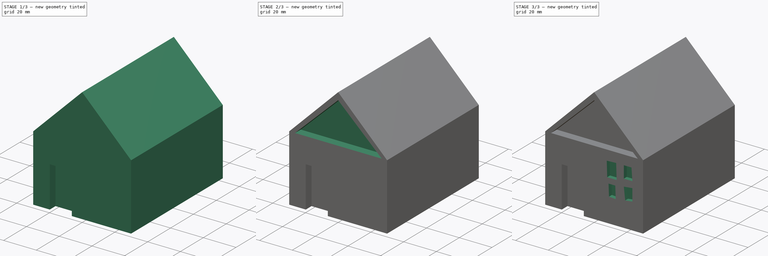
[diagram: build sequence overview — one tinted view per stage of 3, left to right]
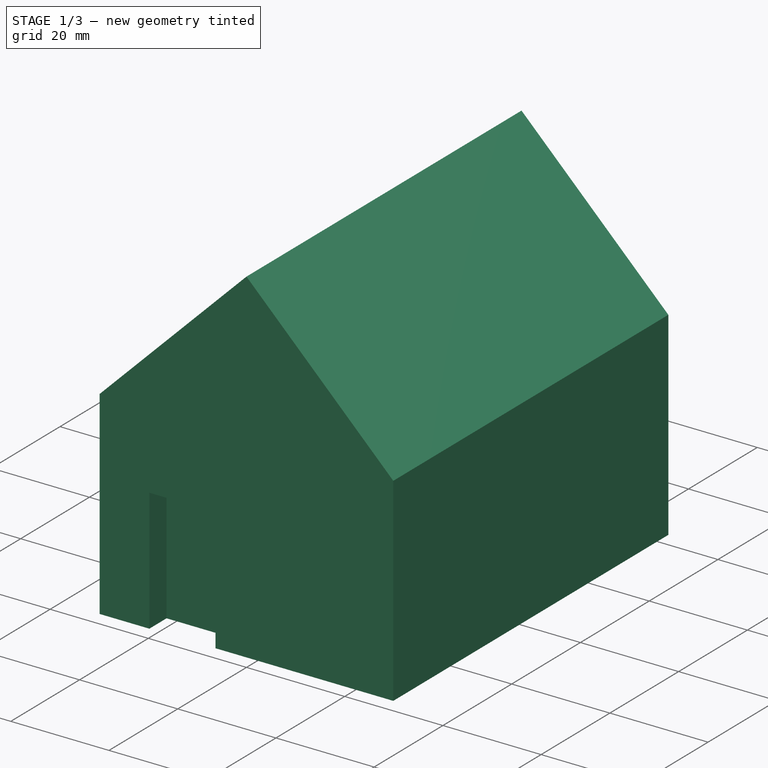
[diagram: stage 1 of 3 — iso view after this stage's code; geometry added in this stage tinted green]
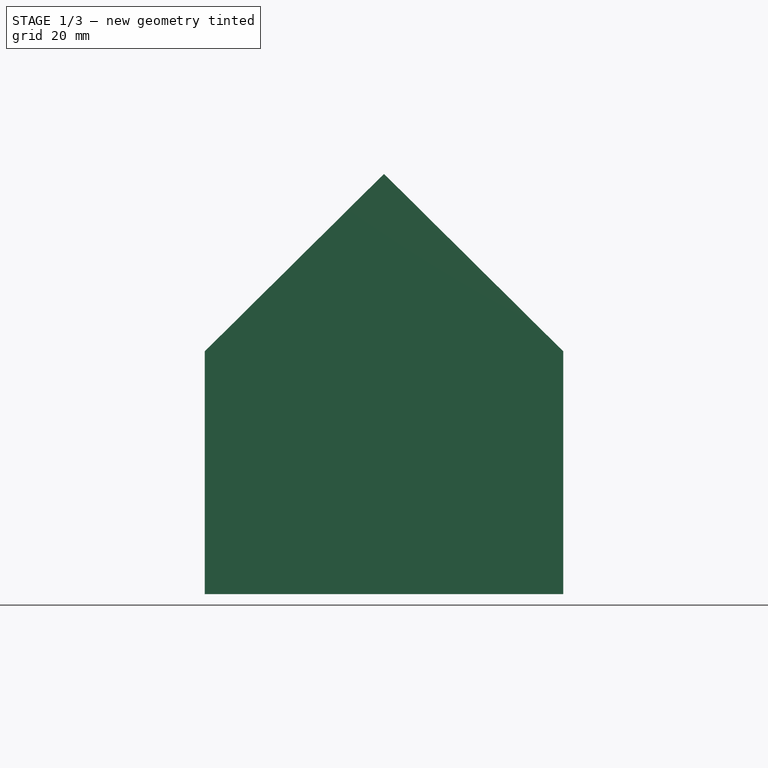
[diagram: stage 1 of 3 — front view after this stage's code; geometry added in this stage tinted green]
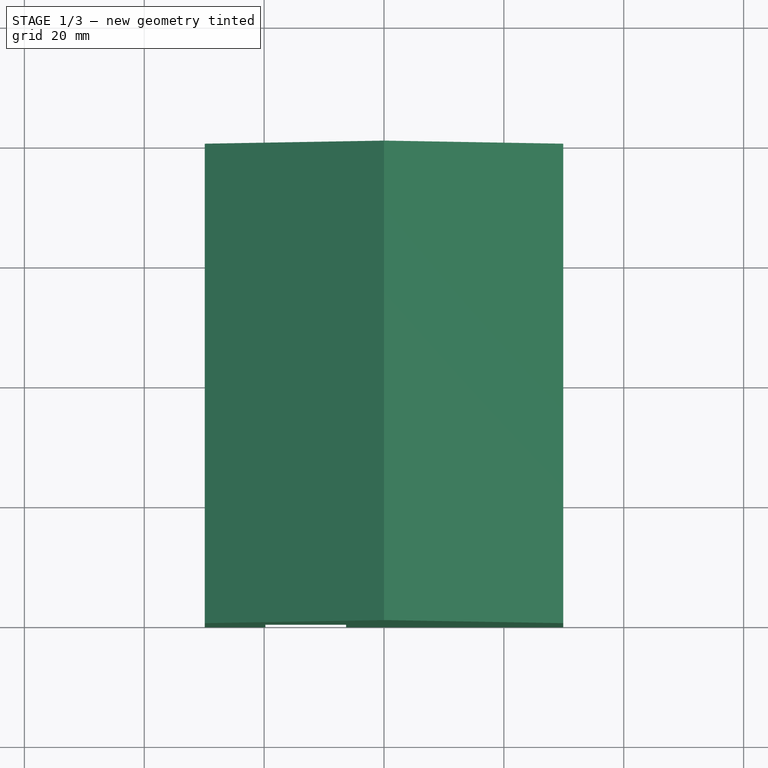
[diagram: stage 1 of 3 — top view after this stage's code; geometry added in this stage tinted green]
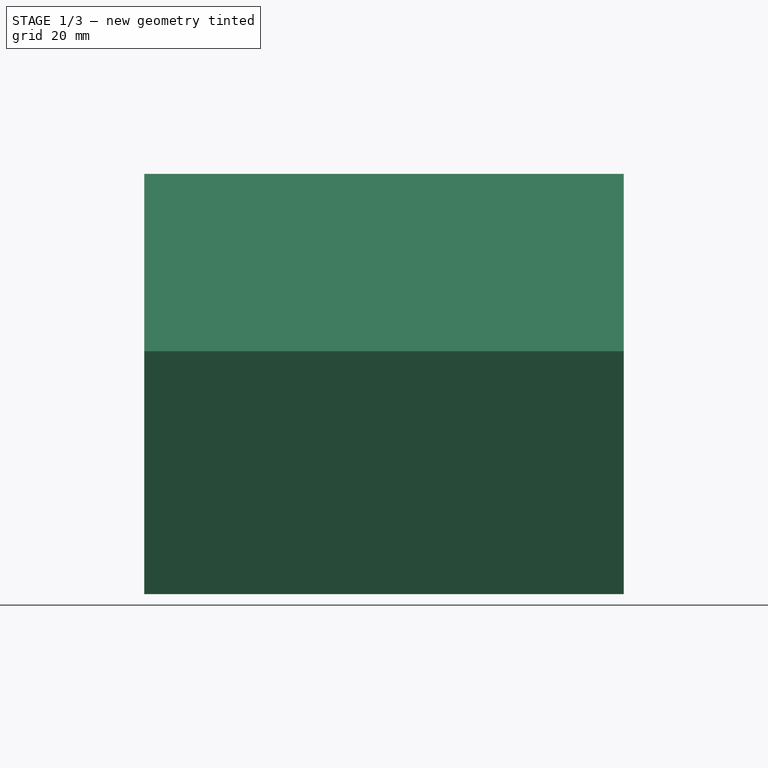
[diagram: stage 1 of 3 — right view after this stage's code; geometry added in this stage tinted green]
FCSTD DOCUMENT  (FreeCAD 0.21R33694 (Git))
Label: OJT1_T17R02_casa
License: All rights reserved
LicenseURL: http://en.wikipedia.org/wiki/All_rights_reserved
objects: Sketcher::SketchObject×5, PartDesign::Pocket×4, PartDesign::Pad×1, PartDesign::Body×1
note: 16 computed .brp shape members not serialized (recipe doc carries the construction recipe); baked Part::Feature solids carry a one-line shape summary decoded from their .brp

FEATURE [Sketcher::SketchObject] Sketch
  FullyConstrained = false
  MapMode = 5
  Placement = pos=(0,0,0) rot=(1,0,0;1.5708rad)
  Support = -> [XZ_Plane]
  sketch-geometry (5):
    g0: LineSegment StartX=-3.6e-15 StartY=29.596 StartZ=0 EndX=-29.899 EndY=0 EndZ=0
    g1: LineSegment StartX=-29.899 StartY=0 StartZ=0 EndX=-29.899 EndY=-40.505 EndZ=0
    g2: LineSegment StartX=-29.899 StartY=-40.505 StartZ=0 EndX=29.899 EndY=-40.505 EndZ=0
    g3: LineSegment StartX=29.899 StartY=-40.505 StartZ=0 EndX=29.899 EndY=0 EndZ=0
    g4: LineSegment StartX=29.899 StartY=0 StartZ=0 EndX=-3.6e-15 EndY=29.596 EndZ=0
  constraints (11):
    c: PointOnObject(g0,g-2)
    c: PointOnObject(g0,g-1)
    c: Coincident(g0,g1)
    c: Vertical(g1)
    c: Coincident(g1,g2)
    c: Horizontal(g2)
    c: Coincident(g2,g3)
    c: PointOnObject(g3,g-1)
    c: Vertical(g3)
    c: Coincident(g3,g4)
    c: Coincident(g4,g0)
FEATURE [PartDesign::Pad] Pad
  Direction = (0,-1,2e-16)
  Length = 80
  Length2 = 10
  Placement = pos=(0,0,0) rot=(1,0,0;1.5708rad)
  Profile = -> Sketch
  ReferenceAxis = -> Sketch [N_Axis]
  Type = 0
FEATURE [Sketcher::SketchObject] Sketch001
  FullyConstrained = false
  MapMode = 5
  Placement = pos=(0,-80,1.78e-14) rot=(1,0,0;1.5708rad)
  Support = -> [Pad]
  sketch-geometry (4):
    g0: LineSegment StartX=-19.7797 StartY=-41.0304 StartZ=0 EndX=-19.7797 EndY=-15.4817 EndZ=0
    g1: LineSegment StartX=-19.7797 StartY=-15.4817 StartZ=0 EndX=-6.3185 EndY=-15.4817 EndZ=0
    g2: LineSegment StartX=-6.3185 StartY=-15.4817 StartZ=0 EndX=-6.3185 EndY=-41.0304 EndZ=0
    g3: LineSegment StartX=-6.3185 StartY=-41.0304 StartZ=0 EndX=-19.7797 EndY=-41.0304 EndZ=0
  constraints (8):
    c: Vertical(g0)
    c: Coincident(g0,g1)
    c: Horizontal(g1)
    c: Coincident(g1,g2)
    c: Vertical(g2)
    c: Coincident(g2,g3)
    c: Coincident(g3,g0)
    c: Horizontal(g3)
FEATURE [PartDesign::Pocket] Pocket
  BaseFeature = -> Pad
  Direction = (0,1,-2e-16)
  Length = 5
  Length2 = 5
  Placement = pos=(0,0,0) rot=(1,0,0;1.5708rad)
  Profile = -> Sketch001
  ReferenceAxis = -> Sketch001 [N_Axis]
  Type = 0
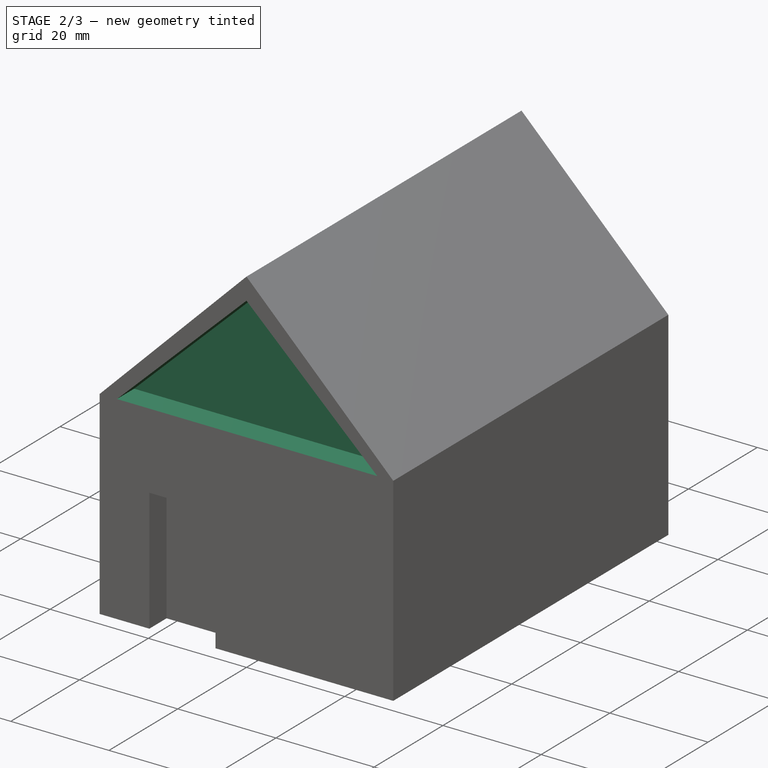
[diagram: stage 2 of 3 — iso view after this stage's code; geometry added in this stage tinted green]
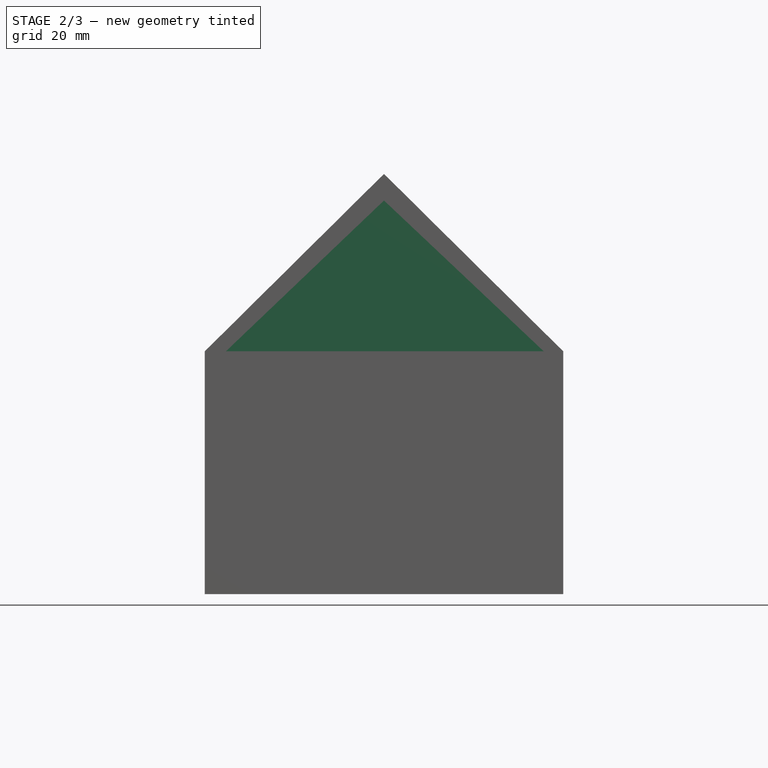
[diagram: stage 2 of 3 — front view after this stage's code; geometry added in this stage tinted green]
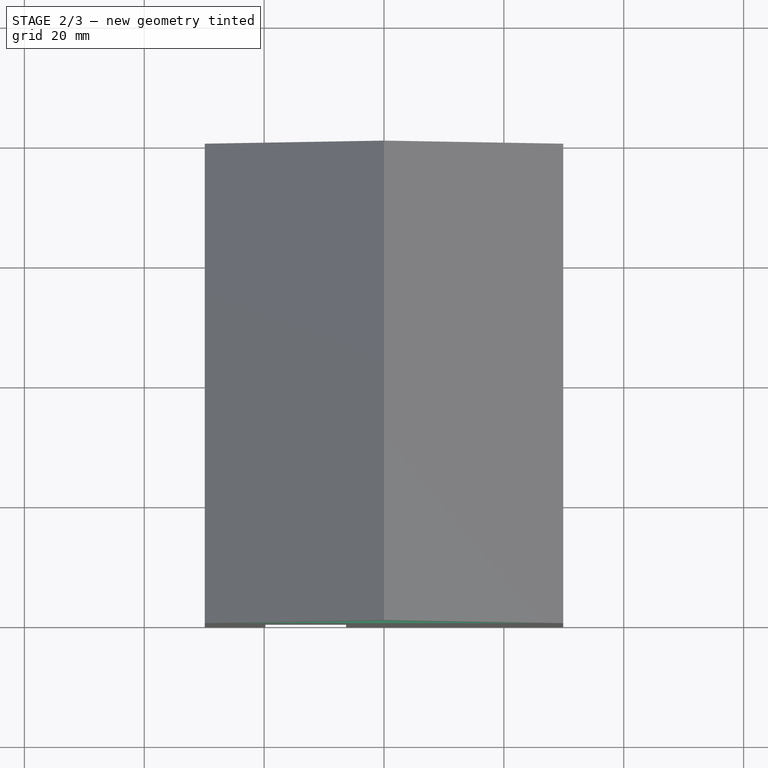
[diagram: stage 2 of 3 — top view after this stage's code; geometry added in this stage tinted green]
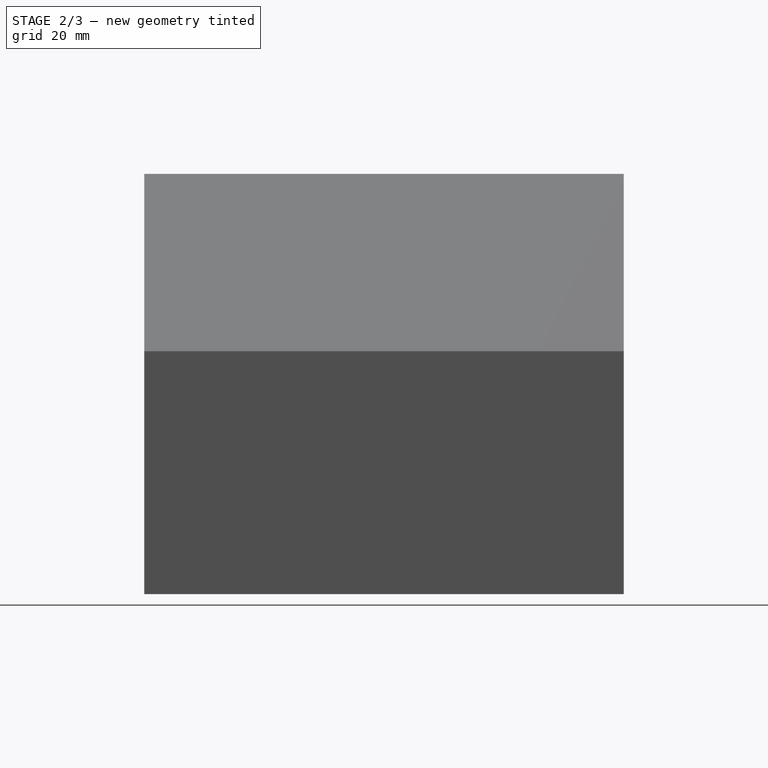
[diagram: stage 2 of 3 — right view after this stage's code; geometry added in this stage tinted green]
FEATURE [Sketcher::SketchObject] Sketch002
  FullyConstrained = false
  MapMode = 5
  Placement = pos=(0,-80,1.78e-14) rot=(1,0,0;1.5708rad)
  Support = -> [Pocket]
  sketch-geometry (3):
    g0: LineSegment StartX=0 StartY=25.1602 StartZ=0 EndX=-26.3752 EndY=0 EndZ=0
    g1: LineSegment StartX=-26.3752 StartY=0 StartZ=0 EndX=26.6424 EndY=0 EndZ=0
    g2: LineSegment StartX=26.6424 StartY=0 StartZ=0 EndX=0 EndY=25.1602 EndZ=0
  constraints (6):
    c: PointOnObject(g0,g-2)
    c: PointOnObject(g0,g-1)
    c: Coincident(g0,g1)
    c: Horizontal(g1)
    c: Coincident(g1,g2)
    c: Coincident(g2,g0)
FEATURE [PartDesign::Pocket] Pocket001
  BaseFeature = -> Pocket
  Direction = (0,1,-2e-16)
  Length = 5
  Length2 = 5
  Placement = pos=(0,0,0) rot=(1,0,0;1.5708rad)
  Profile = -> Sketch002
  ReferenceAxis = -> Sketch002 [N_Axis]
  Type = 0
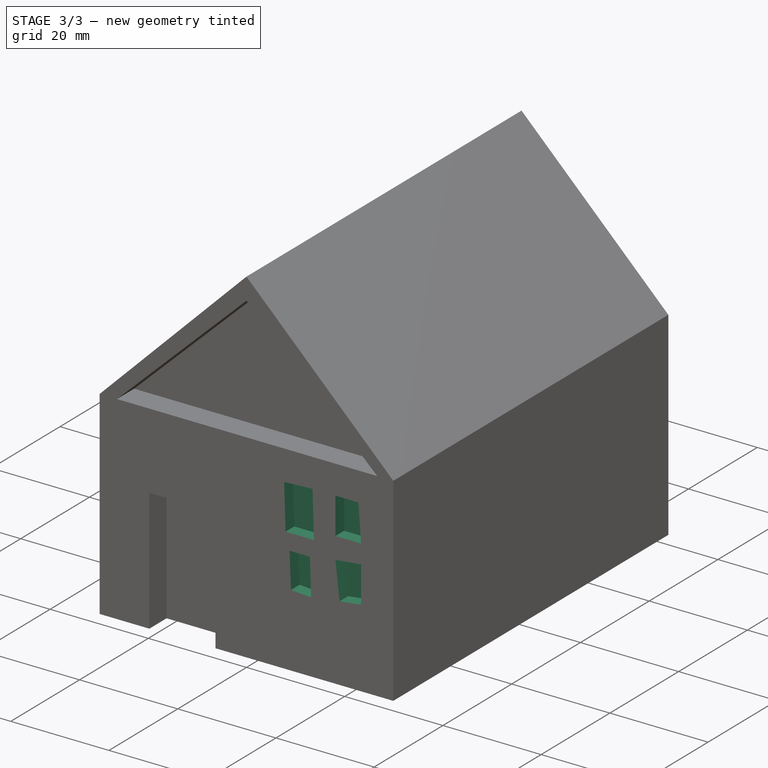
[diagram: stage 3 of 3 — iso view after this stage's code; geometry added in this stage tinted green]
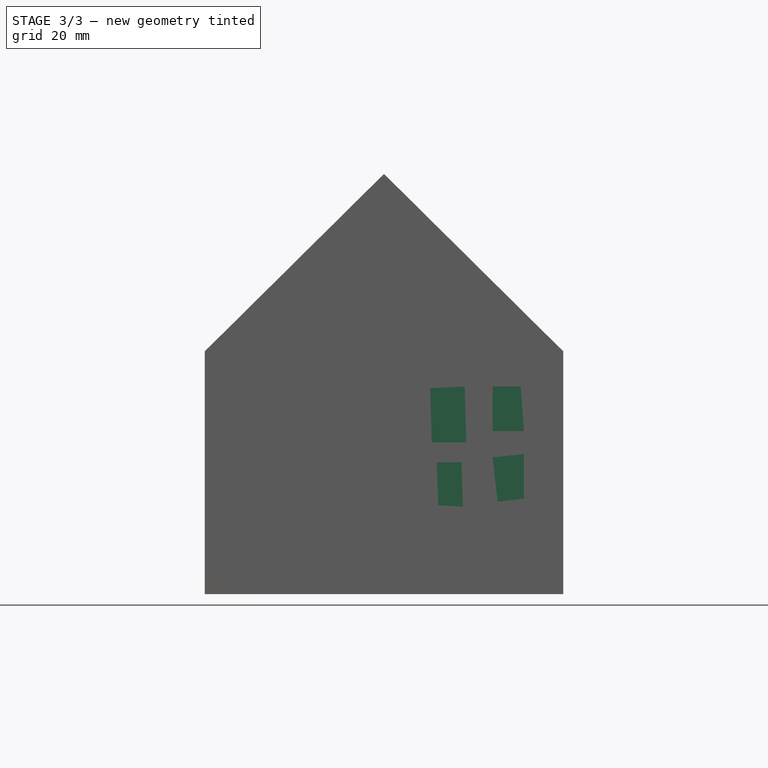
[diagram: stage 3 of 3 — front view after this stage's code; geometry added in this stage tinted green]
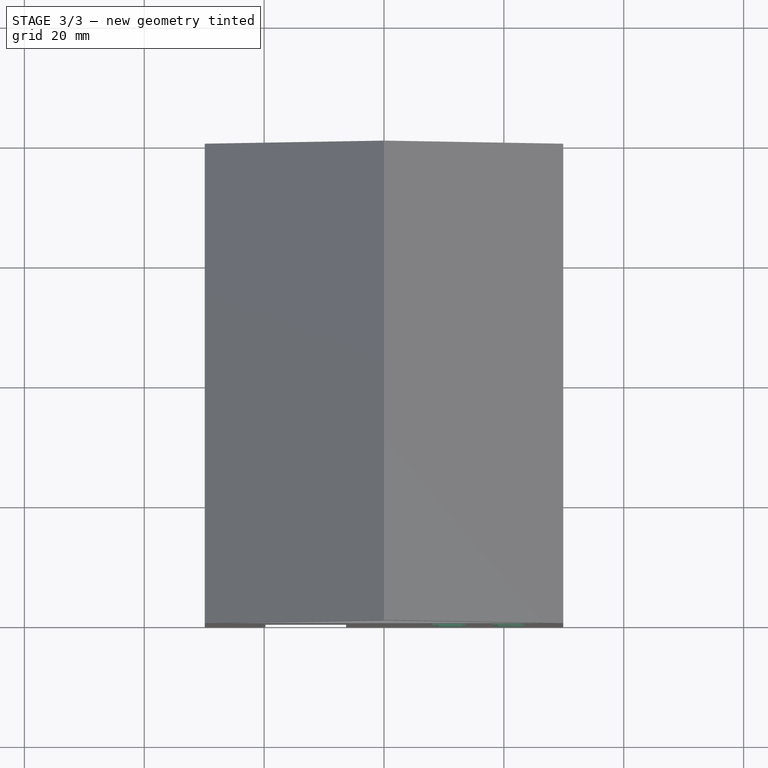
[diagram: stage 3 of 3 — top view after this stage's code; geometry added in this stage tinted green]
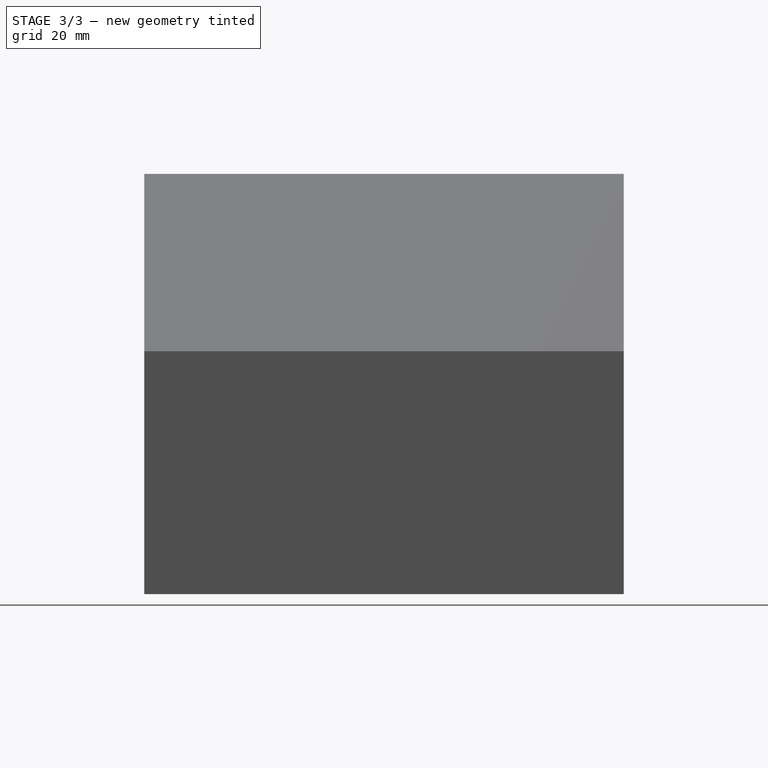
[diagram: stage 3 of 3 — right view after this stage's code; geometry added in this stage tinted green]
FEATURE [Sketcher::SketchObject] Sketch003
  FullyConstrained = false
  MapMode = 5
  Placement = pos=(0,-80,1.78e-14) rot=(1,0,0;1.5708rad)
  Support = -> [Pocket001]
  sketch-geometry (4):
    g0: LineSegment StartX=7.6879 StartY=-6.15595 StartZ=0 EndX=7.9626 EndY=-15.2211 EndZ=0
    g1: LineSegment StartX=7.9626 StartY=-15.2211 StartZ=0 EndX=13.7314 EndY=-15.2211 EndZ=0
    g2: LineSegment StartX=13.7314 StartY=-15.2211 StartZ=0 EndX=13.4567 EndY=-5.88124 EndZ=0
    g3: LineSegment StartX=13.4567 StartY=-5.88124 StartZ=0 EndX=7.6879 EndY=-6.15595 EndZ=0
  constraints (4):
    c: Coincident(g0,g1)
    c: Coincident(g1,g2)
    c: Coincident(g2,g3)
    c: Coincident(g3,g0)
FEATURE [Sketcher::SketchObject] Sketch004
  FullyConstrained = false
  MapMode = 5
  Placement = pos=(0,-80,1.78e-14) rot=(1,0,0;1.5708rad)
  Support = -> [Pocket001]
  sketch-geometry (12):
    g0: LineSegment StartX=23.346 StartY=-13.2982 StartZ=0 EndX=18.1266 EndY=-13.2982 EndZ=0
    g1: LineSegment StartX=18.1266 StartY=-13.2982 StartZ=0 EndX=18.1266 EndY=-5.88124 EndZ=0
    g2: LineSegment StartX=18.1266 StartY=-5.88124 StartZ=0 EndX=22.7966 EndY=-5.88124 EndZ=0
    g3: LineSegment StartX=22.7966 StartY=-5.88124 StartZ=0 EndX=23.346 EndY=-13.2982 EndZ=0
    g4: LineSegment StartX=8.7867 StartY=-18.5176 StartZ=0 EndX=12.9073 EndY=-18.5176 EndZ=0
    g5: LineSegment StartX=12.9073 StartY=-18.5176 StartZ=0 EndX=13.182 EndY=-25.9345 EndZ=0
    g6: LineSegment StartX=13.182 StartY=-25.9345 StartZ=0 EndX=9.06143 EndY=-25.6598 EndZ=0
    g7: LineSegment StartX=9.06143 StartY=-25.6598 StartZ=0 EndX=8.7867 EndY=-18.5176 EndZ=0
    g8: LineSegment StartX=18.1266 StartY=-17.6935 StartZ=0 EndX=18.9507 EndY=-25.1104 EndZ=0
    g9: LineSegment StartX=18.9507 StartY=-25.1104 StartZ=0 EndX=23.3459 EndY=-24.561 EndZ=0
    g10: LineSegment StartX=23.3459 StartY=-24.561 StartZ=0 EndX=23.3459 EndY=-17.144 EndZ=0
    g11: LineSegment StartX=23.3459 StartY=-17.144 StartZ=0 EndX=18.1266 EndY=-17.6935 EndZ=0
  constraints (17):
    c: Horizontal(g0)
    c: Coincident(g0,g1)
    c: Vertical(g1)
    c: Coincident(g1,g2)
    c: Horizontal(g2)
    c: Coincident(g2,g3)
    c: Coincident(g3,g0)
    c: Horizontal(g4)
    c: Coincident(g4,g5)
    c: Coincident(g5,g6)
    c: Coincident(g6,g7)
    c: Coincident(g7,g4)
    c: Coincident(g8,g9)
    c: Coincident(g9,g10)
    c: Vertical(g10)
    c: Coincident(g10,g11)
    c: Coincident(g11,g8)
FEATURE [PartDesign::Pocket] Pocket002
  BaseFeature = -> Pocket001
  Direction = (0,1,-2e-16)
  Length = 2.5
  Length2 = 5
  Placement = pos=(0,0,0) rot=(1,0,0;1.5708rad)
  Profile = -> Sketch004
  ReferenceAxis = -> Sketch004 [N_Axis]
  Type = 0
FEATURE [PartDesign::Pocket] Pocket003
  BaseFeature = -> Pocket002
  Direction = (0,1,-2e-16)
  Length = 2.5
  Length2 = 5
  Placement = pos=(0,0,0) rot=(1,0,0;1.5708rad)
  Profile = -> Sketch003
  ReferenceAxis = -> Sketch003 [N_Axis]
  Type = 0
FEATURE [PartDesign::Body] Body
  Group = -> [Sketch,Pad,Sketch001,Pocket,Sketch002,Pocket001,Sketch003,Sketch004,Pocket002,Pocket003]
  Origin = -> Origin
  Tip = -> Pocket003
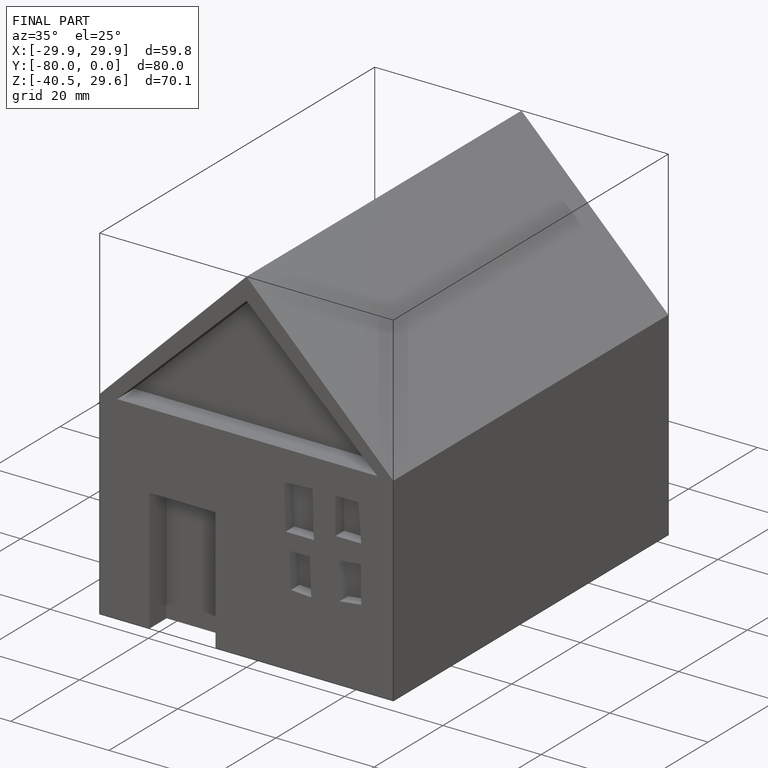
[diagram: finished part — iso view with bounding-box wireframe]
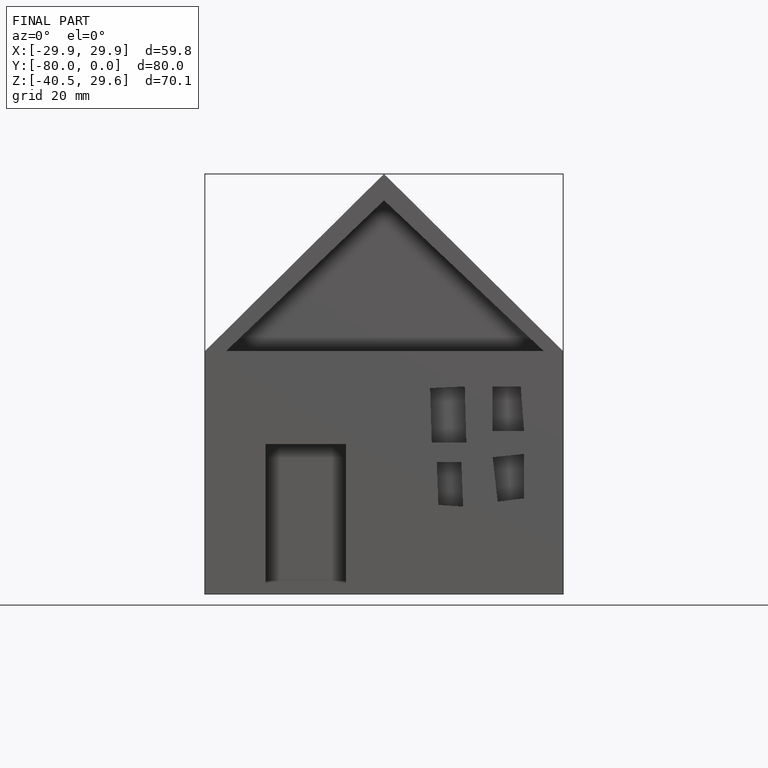
[diagram: finished part — front view with bounding-box wireframe]
